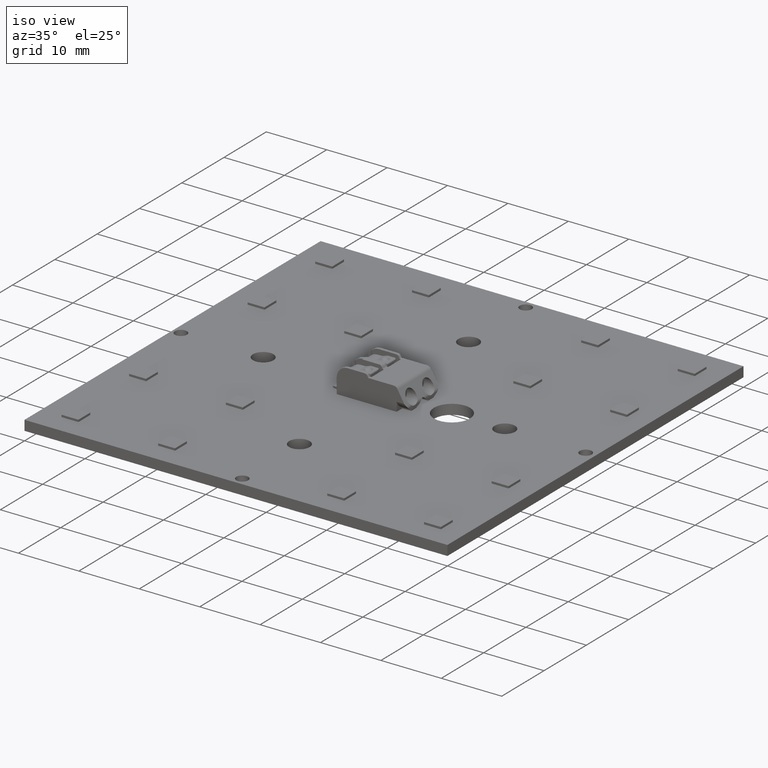
[diagram: clean part render]
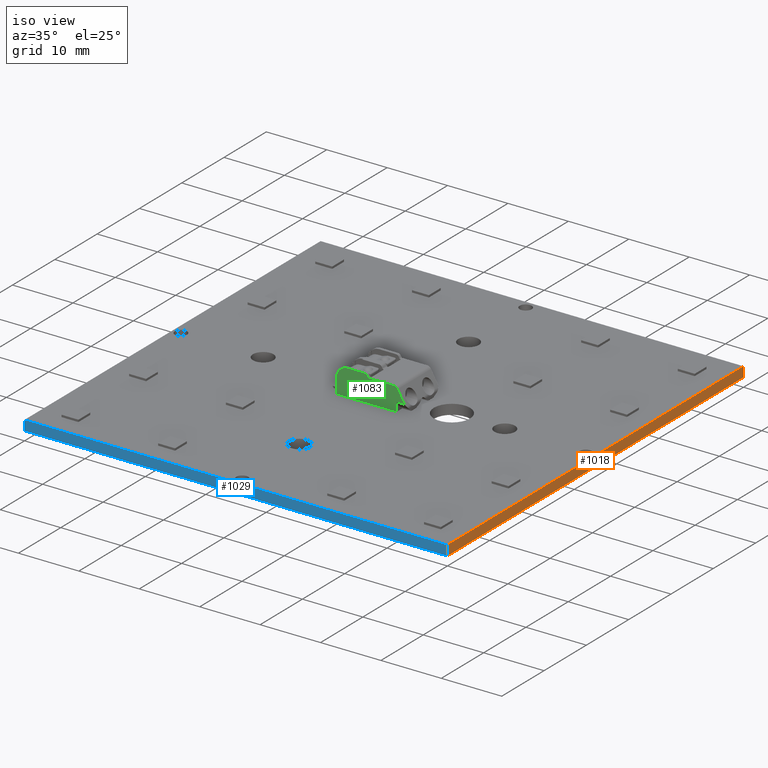
[diagram: same view with three faces highlighted in distinct colors, each labeled with its STEP entity id]
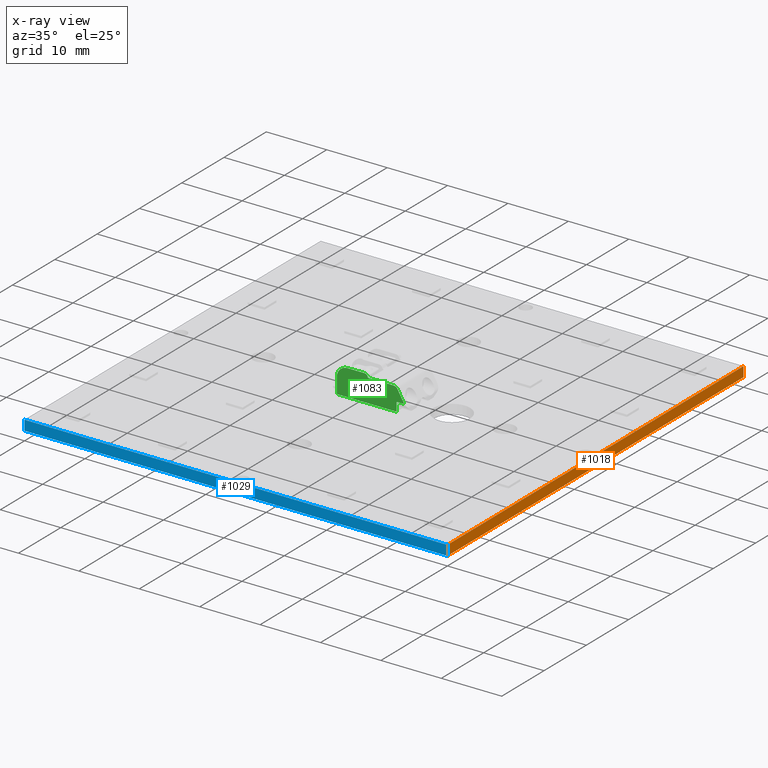
[diagram: x-ray of the same camera — body ghosted, the three highlighted faces saturated]
A machine part, iso view with three faces highlighted in distinct colors.
The next image is the same camera in x-ray (body ghosted, the three faces saturated) — at least one of them is partly hidden behind the body in this view.
Their STEP definitions:

[orange] entity #1018 — the highlighted planar face has unit normal (1, 0, 0).
#1018=ADVANCED_FACE('',(#1313),#1198,.T.);
#1198=PLANE('',#4209);
#1313=FACE_OUTER_BOUND('',#1480,.T.);
#1480=EDGE_LOOP('',(#1689,#1690,#1691,#1692));
#1689=ORIENTED_EDGE('',*,*,#3011,.F.);
#1690=ORIENTED_EDGE('',*,*,#3012,.F.);
#1691=ORIENTED_EDGE('',*,*,#3013,.T.);
#1692=ORIENTED_EDGE('',*,*,#3014,.T.);
#2679=VERTEX_POINT('',#5512);
#2680=VERTEX_POINT('',#5513);
#2681=VERTEX_POINT('',#5515);
#2682=VERTEX_POINT('',#5517);
#3011=EDGE_CURVE('',#2679,#2680,#3506,.T.);
#3012=EDGE_CURVE('',#2681,#2679,#3507,.T.);
#3013=EDGE_CURVE('',#2681,#2682,#3508,.T.);
#3014=EDGE_CURVE('',#2682,#2680,#3509,.T.);
#3506=LINE('',#5511,#3857);
#3507=LINE('',#5514,#3858);
#3508=LINE('',#5516,#3859);
#3509=LINE('',#5518,#3860);
#3857=VECTOR('',#4527,1.);
#3858=VECTOR('',#4528,1.);
#3859=VECTOR('',#4529,1.);
#3860=VECTOR('',#4530,1.);
#4209=AXIS2_PLACEMENT_3D('',#5519,#4531,#4532);
#4527=DIRECTION('',(0.,1.,0.));
#4528=DIRECTION('',(0.,0.,1.));
#4529=DIRECTION('',(0.,1.,0.));
#4530=DIRECTION('',(0.,0.,1.));
#4531=DIRECTION('',(1.,0.,0.));
#4532=DIRECTION('',(0.,0.,-1.));
#5511=CARTESIAN_POINT('',(70.,0.,0.));
#5512=CARTESIAN_POINT('',(70.,0.,0.));
#5513=CARTESIAN_POINT('',(70.,70.,0.));
#5514=CARTESIAN_POINT('',(70.,0.,-1.65));
#5515=CARTESIAN_POINT('',(70.,0.,-1.65));
#5516=CARTESIAN_POINT('',(70.,0.,-1.65));
#5517=CARTESIAN_POINT('',(70.,70.,-1.65));
#5518=CARTESIAN_POINT('',(70.,70.,-1.65));
#5519=CARTESIAN_POINT('',(70.,0.,-1.65));

[blue] entity #1029 — the highlighted planar face has unit normal (0, -1, 0).
#1029=ADVANCED_FACE('',(#1316),#1201,.T.);
#1201=PLANE('',#4236);
#1316=FACE_OUTER_BOUND('',#1499,.T.);
#1499=EDGE_LOOP('',(#1717,#1718,#1719,#1720));
#1717=ORIENTED_EDGE('',*,*,#3037,.F.);
#1718=ORIENTED_EDGE('',*,*,#3020,.F.);
#1719=ORIENTED_EDGE('',*,*,#3038,.T.);
#1720=ORIENTED_EDGE('',*,*,#3012,.T.);
#2679=VERTEX_POINT('',#5512);
#2681=VERTEX_POINT('',#5515);
#2685=VERTEX_POINT('',#5527);
#2686=VERTEX_POINT('',#5529);
#3012=EDGE_CURVE('',#2681,#2679,#3507,.T.);
#3020=EDGE_CURVE('',#2686,#2685,#3515,.T.);
#3037=EDGE_CURVE('',#2685,#2679,#3516,.T.);
#3038=EDGE_CURVE('',#2686,#2681,#3517,.T.);
#3507=LINE('',#5514,#3858);
#3515=LINE('',#5530,#3866);
#3516=LINE('',#5572,#3867);
#3517=LINE('',#5573,#3868);
#3858=VECTOR('',#4528,1.);
#3866=VECTOR('',#4540,1.);
#3867=VECTOR('',#4591,1.);
#3868=VECTOR('',#4592,1.);
#4236=AXIS2_PLACEMENT_3D('',#5574,#4593,#4594);
#4528=DIRECTION('',(0.,0.,1.));
#4540=DIRECTION('',(0.,0.,1.));
#4591=DIRECTION('',(1.,0.,0.));
#4592=DIRECTION('',(1.,0.,0.));
#4593=DIRECTION('',(0.,-1.,0.));
#4594=DIRECTION('',(0.,0.,-1.));
#5512=CARTESIAN_POINT('',(70.,0.,0.));
#5514=CARTESIAN_POINT('',(70.,0.,-1.65));
#5515=CARTESIAN_POINT('',(70.,0.,-1.65));
#5527=CARTESIAN_POINT('',(0.,0.,0.));
#5529=CARTESIAN_POINT('',(0.,0.,-1.65));
#5530=CARTESIAN_POINT('',(0.,0.,-1.65));
#5572=CARTESIAN_POINT('',(0.,0.,0.));
#5573=CARTESIAN_POINT('',(0.,0.,-1.65));
#5574=CARTESIAN_POINT('',(0.,0.,-1.65));

[green] entity #1083 — the highlighted planar face has unit normal (0, -1, 0).
#960=CIRCLE('',#4294,0.500000000000042);
#962=CIRCLE('',#4297,0.199999999999976);
#970=CIRCLE('',#4313,1.79999999999961);
#991=CIRCLE('',#4356,0.750000000000068);
#1083=ADVANCED_FACE('',(#1367),#1239,.T.);
#1239=PLANE('',#4363);
#1367=FACE_OUTER_BOUND('',#1572,.T.);
#1572=EDGE_LOOP('',(#2131,#2132,#2133,#2134,#2135,#2136,#2137,#2138,#2139,
#2140,#2141,#2142));
#2131=ORIENTED_EDGE('',*,*,#3358,.T.);
#2132=ORIENTED_EDGE('',*,*,#3345,.T.);
#2133=ORIENTED_EDGE('',*,*,#3349,.T.);
#2134=ORIENTED_EDGE('',*,*,#3352,.T.);
#2135=ORIENTED_EDGE('',*,*,#3236,.T.);
#2136=ORIENTED_EDGE('',*,*,#3248,.T.);
#2137=ORIENTED_EDGE('',*,*,#3233,.T.);
#2138=ORIENTED_EDGE('',*,*,#3279,.T.);
#2139=ORIENTED_EDGE('',*,*,#3265,.T.);
#2140=ORIENTED_EDGE('',*,*,#3066,.T.);
#2141=ORIENTED_EDGE('',*,*,#3316,.T.);
#2142=ORIENTED_EDGE('',*,*,#3322,.T.);
#2726=VERTEX_POINT('',#5634);
#2727=VERTEX_POINT('',#5636);
#2875=VERTEX_POINT('',#5981);
#2878=VERTEX_POINT('',#5986);
#2881=VERTEX_POINT('',#5993);
#2882=VERTEX_POINT('',#5995);
#2903=VERTEX_POINT('',#6098);
#2940=VERTEX_POINT('',#6279);
#2942=VERTEX_POINT('',#6289);
#2953=VERTEX_POINT('',#6343);
#2954=VERTEX_POINT('',#6345);
#2956=VERTEX_POINT('',#6351);
#3066=EDGE_CURVE('',#2727,#2726,#3543,.T.);
#3233=EDGE_CURVE('',#2875,#2878,#960,.T.);
#3236=EDGE_CURVE('',#2882,#2881,#962,.T.);
#3248=EDGE_CURVE('',#2881,#2875,#3684,.T.);
#3265=EDGE_CURVE('',#2903,#2727,#970,.T.);
#3279=EDGE_CURVE('',#2878,#2903,#3700,.T.);
#3316=EDGE_CURVE('',#2726,#2940,#3723,.T.);
#3322=EDGE_CURVE('',#2940,#2942,#3727,.T.);
#3345=EDGE_CURVE('',#2954,#2953,#3739,.T.);
#3349=EDGE_CURVE('',#2953,#2956,#991,.T.);
#3352=EDGE_CURVE('',#2956,#2882,#3742,.T.);
#3358=EDGE_CURVE('',#2942,#2954,#3745,.T.);
#3543=LINE('',#5635,#3894);
#3684=LINE('',#6044,#4035);
#3700=LINE('',#6142,#4051);
#3723=LINE('',#6280,#4074);
#3727=LINE('',#6290,#4078);
#3739=LINE('',#6344,#4090);
#3742=LINE('',#6358,#4093);
#3745=LINE('',#6367,#4096);
#3894=VECTOR('',#4642,1.);
#4035=VECTOR('',#4893,1.);
#4051=VECTOR('',#4945,1.);
#4074=VECTOR('',#4996,1.);
#4078=VECTOR('',#5008,1.);
#4090=VECTOR('',#5048,1.);
#4093=VECTOR('',#5063,1.);
#4096=VECTOR('',#5074,1.);
#4294=AXIS2_PLACEMENT_3D('',#5987,#4868,#4869);
#4297=AXIS2_PLACEMENT_3D('',#5994,#4875,#4876);
#4313=AXIS2_PLACEMENT_3D('',#6097,#4923,#4924);
#4356=AXIS2_PLACEMENT_3D('',#6352,#5056,#5057);
#4363=AXIS2_PLACEMENT_3D('',#6368,#5075,#5076);
#4642=DIRECTION('',(0.,-1.,0.));
#4868=DIRECTION('',(0.,0.,1.));
#4869=DIRECTION('',(1.,0.,0.));
#4875=DIRECTION('',(0.,0.,-1.));
#4876=DIRECTION('',(0.999999999999999,0.,0.));
#4893=DIRECTION('',(-0.499999999999918,0.866025403784486,0.));
#4923=DIRECTION('',(0.,0.,1.));
#4924=DIRECTION('',(1.,0.,0.));
#4945=DIRECTION('',(-1.,0.,0.));
#4996=DIRECTION('',(1.,0.,0.));
#5008=DIRECTION('',(0.,1.,0.));
#5048=DIRECTION('',(-0.500000000000006,0.866025403784435,0.));
#5056=DIRECTION('',(0.,0.,1.));
#5057=DIRECTION('',(1.,0.,0.));
#5063=DIRECTION('',(-1.,0.,0.));
#5074=DIRECTION('',(1.,0.,0.));
#5075=DIRECTION('',(0.,0.,1.));
#5076=DIRECTION('',(1.,0.,0.));
#5634=CARTESIAN_POINT('',(-11.5,0.,7.9));
#5635=CARTESIAN_POINT('',(-11.5,2.55,7.9));
#5636=CARTESIAN_POINT('',(-11.5,2.55,7.9));
#5981=CARTESIAN_POINT('',(-6.4732050807569,4.1,7.9));
#5986=CARTESIAN_POINT('',(-6.9062177826491,4.35,7.9));
#5987=CARTESIAN_POINT('',(-6.90621778264914,3.85,7.9));
#5993=CARTESIAN_POINT('',(-6.357735026919,3.9,7.9));
#5994=CARTESIAN_POINT('',(-6.18452994616213,4.,7.9));
#5995=CARTESIAN_POINT('',(-6.1845299461621,3.8,7.9));
#6044=CARTESIAN_POINT('',(-6.357735026919,3.9,7.9));
#6097=CARTESIAN_POINT('',(-9.70000000000039,2.55000000000039,7.9));
#6098=CARTESIAN_POINT('',(-9.7,4.35,7.9));
#6142=CARTESIAN_POINT('',(-6.9062177826491,4.35,7.9));
#6279=CARTESIAN_POINT('',(-1.6,0.,7.9));
#6280=CARTESIAN_POINT('',(-11.5,0.,7.9));
#6289=CARTESIAN_POINT('',(-1.6,1.475,7.9));
#6290=CARTESIAN_POINT('',(-1.6,0.,7.9));
#6343=CARTESIAN_POINT('',(-1.4504809471617,3.425,7.9));
#6344=CARTESIAN_POINT('',(-0.10048094716167,1.086731409782,7.9));
#6345=CARTESIAN_POINT('',(-0.324647922241913,1.475,7.9));
#6351=CARTESIAN_POINT('',(-2.1,3.8,7.9));
#6352=CARTESIAN_POINT('',(-2.10000000000007,3.04999999999993,7.9));
#6358=CARTESIAN_POINT('',(-2.1,3.8,7.9));
#6367=CARTESIAN_POINT('',(-1.6,1.475,7.9));
#6368=CARTESIAN_POINT('',(-0.749999999999877,0.711731409782035,7.9));